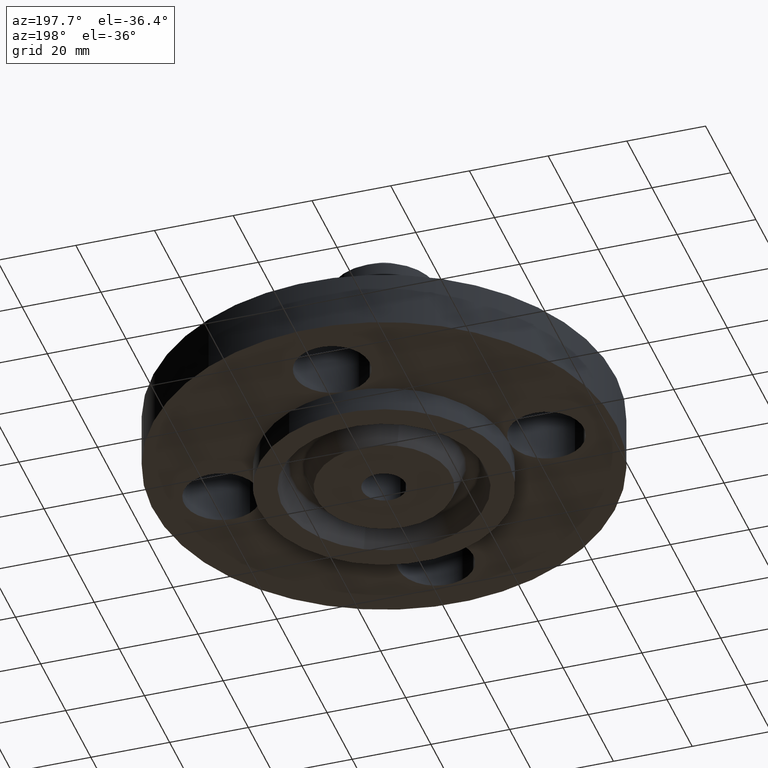
[diagram: clean part render]
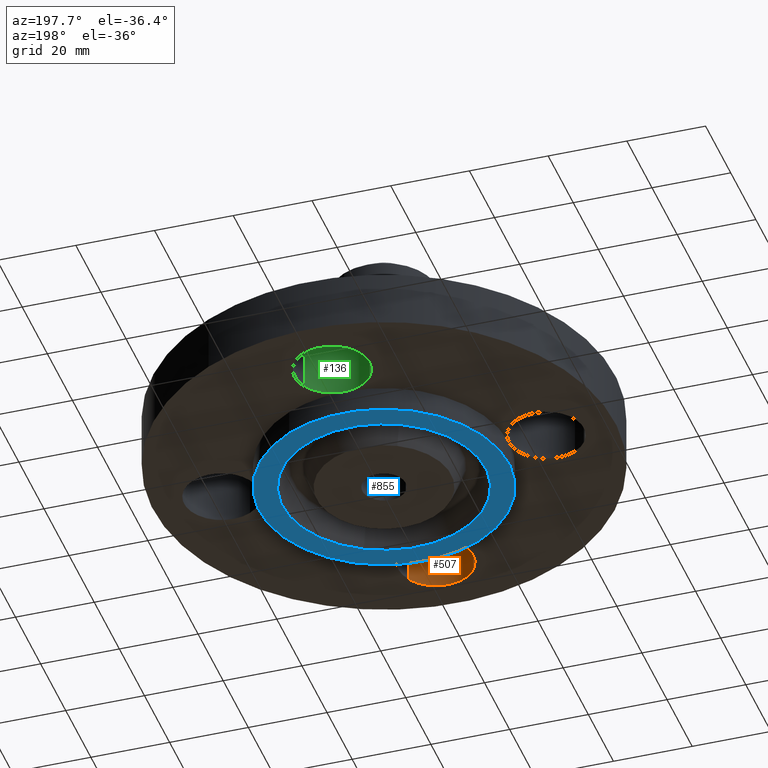
[diagram: same view with three faces highlighted in distinct colors, each labeled with its STEP entity id]
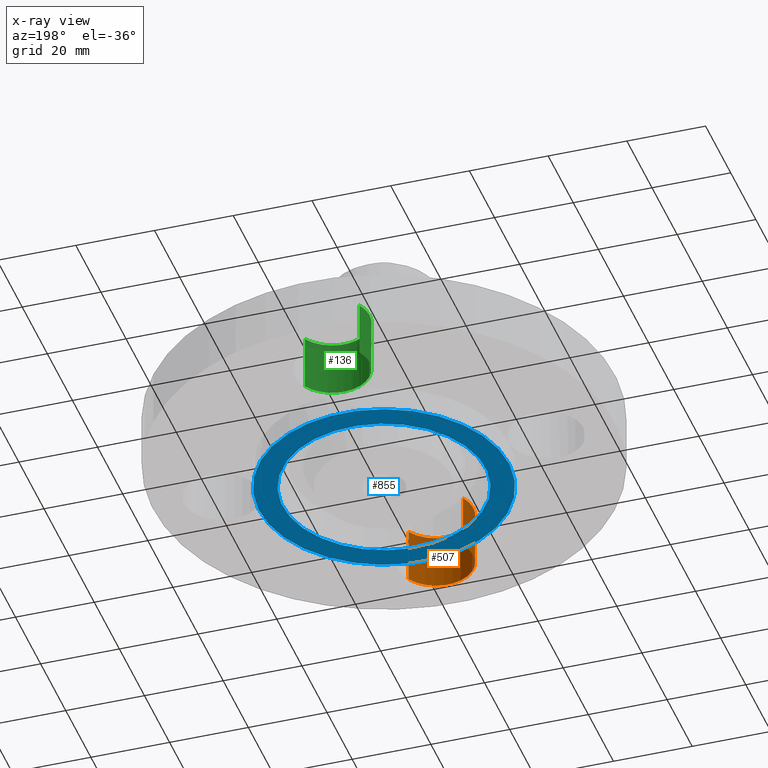
[diagram: x-ray of the same camera — body ghosted, the three highlighted faces saturated]
A machine part, auxiliary view with three faces highlighted in distinct colors.
The next image is the same camera in x-ray (body ghosted, the three faces saturated) — at least one of them is partly hidden behind the body in this view.
Their STEP definitions:

[orange] entity #507 — the highlighted cylindrical surface (partial cylindrical patch) has radius 9.525 mm, axis along (0, 0, -1).
#178=AXIS2_PLACEMENT_3D('Circle Axis2P3D',#176,#177,$) ;
#367=AXIS2_PLACEMENT_3D('Circle Axis2P3D',#365,#366,$) ;
#499=AXIS2_PLACEMENT_3D('Cylinder Axis2P3D',#496,#497,#498) ;
#171=CARTESIAN_POINT('Vertex',(-0.329093460698,-1.44521542303,0.)) ;
#176=CARTESIAN_POINT('Axis2P3D Location',(1.74838271595E-017,-1.625,0.)) ;
#180=CARTESIAN_POINT('Vertex',(0.329093460698,-1.80478457698,0.)) ;
#360=CARTESIAN_POINT('Vertex',(-0.329093460698,-1.44521542305,0.560000000002)) ;
#362=CARTESIAN_POINT('Vertex',(0.32909346071,-1.80478457699,0.559999999987)) ;
#365=CARTESIAN_POINT('Axis2P3D Location',(1.74838271595E-017,-1.62500000003,0.560000000002)) ;
#471=CARTESIAN_POINT('Line Origine',(-0.32909346071,-1.44521542303,0.279999999998)) ;
#476=CARTESIAN_POINT('Line Origine',(0.32909346071,-1.80478457699,0.279999999998)) ;
#496=CARTESIAN_POINT('Axis2P3D Location',(1.99005104862E-016,-1.62500000001,0.556062992128)) ;
#177=DIRECTION('Axis2P3D Direction',(0.,0.,-0.0393700787402)) ;
#366=DIRECTION('Axis2P3D Direction',(0.,0.,-0.0393700787402)) ;
#472=DIRECTION('Vector Direction',(0.,0.,-0.0393700787402)) ;
#477=DIRECTION('Vector Direction',(0.,0.,-0.0393700787402)) ;
#497=DIRECTION('Axis2P3D Direction',(0.,0.,-0.0393700787402)) ;
#498=DIRECTION('Axis2P3D XDirection',(0.0345504945626,-0.0188750212049,0.)) ;
#473=VECTOR('Line Direction',#472,0.0393700787402) ;
#478=VECTOR('Line Direction',#477,0.0393700787402) ;
#502=ORIENTED_EDGE('',*,*,#480,.F.) ;
#503=ORIENTED_EDGE('',*,*,#182,.T.) ;
#504=ORIENTED_EDGE('',*,*,#475,.T.) ;
#505=ORIENTED_EDGE('',*,*,#369,.F.) ;
#507=ADVANCED_FACE('PartBody',(#506),#500,.F.) ;
#179=CIRCLE('generated circle',#178,0.374999999988) ;
#368=CIRCLE('generated circle',#367,0.374999999988) ;
#500=CYLINDRICAL_SURFACE('generated cylinder',#499,0.375000000001) ;
#182=EDGE_CURVE('',#181,#172,#179,.T.) ;
#369=EDGE_CURVE('',#363,#361,#368,.T.) ;
#475=EDGE_CURVE('',#172,#361,#474,.F.) ;
#480=EDGE_CURVE('',#181,#363,#479,.F.) ;
#501=EDGE_LOOP('',(#502,#503,#504,#505)) ;
#506=FACE_OUTER_BOUND('',#501,.T.) ;
#474=LINE('Line',#471,#473) ;
#479=LINE('Line',#476,#478) ;
#172=VERTEX_POINT('',#171) ;
#181=VERTEX_POINT('',#180) ;
#361=VERTEX_POINT('',#360) ;
#363=VERTEX_POINT('',#362) ;

[blue] entity #855 — the highlighted planar face has unit normal (0, 0, -1).
#522=AXIS2_PLACEMENT_3D('Circle Axis2P3D',#520,#521,$) ;
#831=AXIS2_PLACEMENT_3D('Plane Axis2P3D',#828,#829,#830) ;
#839=AXIS2_PLACEMENT_3D('Circle Axis2P3D',#837,#838,$) ;
#848=AXIS2_PLACEMENT_3D('Circle Axis2P3D',#846,#847,$) ;
#520=CARTESIAN_POINT('Axis2P3D Location',(0.,0.,-0.249999999992)) ;
#524=CARTESIAN_POINT('Vertex',(0.59928192326,1.09697820237,-0.249999999992)) ;
#526=CARTESIAN_POINT('Vertex',(-0.599281923244,-1.09697820239,-0.250000000001)) ;
#610=CARTESIAN_POINT('Control Point',(-0.59928192326,-1.09697820237,-0.250000000001)) ;
#611=CARTESIAN_POINT('Control Point',(-0.771594856346,-1.00284321799,-0.250000000001)) ;
#612=CARTESIAN_POINT('Control Point',(-0.925424428472,-0.874874668323,-0.25)) ;
#613=CARTESIAN_POINT('Control Point',(-1.05188306882,-0.717884438897,-0.25)) ;
#614=CARTESIAN_POINT('Control Point',(-1.23643069082,-0.362778647508,-0.249999999999)) ;
#615=CARTESIAN_POINT('Control Point',(-1.27300369951,0.035744078188,-0.249999999998)) ;
#616=CARTESIAN_POINT('Control Point',(-1.25141460583,0.236172696128,-0.249999999997)) ;
#617=CARTESIAN_POINT('Control Point',(-1.13081176767,0.61776528422,-0.249999999996)) ;
#618=CARTESIAN_POINT('Control Point',(-0.874874668324,0.925424428471,-0.249999999996)) ;
#619=CARTESIAN_POINT('Control Point',(-0.717884438897,1.05188306882,-0.249999999995)) ;
#620=CARTESIAN_POINT('Control Point',(-0.362778647509,1.23643069082,-0.249999999994)) ;
#621=CARTESIAN_POINT('Control Point',(0.0357440781873,1.27300369951,-0.249999999993)) ;
#622=CARTESIAN_POINT('Control Point',(0.236172696127,1.25141460583,-0.249999999993)) ;
#623=CARTESIAN_POINT('Control Point',(0.426968990173,1.19111318675,-0.249999999992)) ;
#624=CARTESIAN_POINT('Control Point',(0.599281923259,1.09697820237,-0.249999999992)) ;
#828=CARTESIAN_POINT('Axis2P3D Location',(0.,0.217000000001,-0.250000000001)) ;
#837=CARTESIAN_POINT('Axis2P3D Location',(0.,-1.64824234751E-011,-0.250000000001)) ;
#841=CARTESIAN_POINT('Vertex',(0.487096347208,-0.891623882901,-0.250000000001)) ;
#843=CARTESIAN_POINT('Vertex',(-0.487096347208,0.891623882868,-0.250000000001)) ;
#846=CARTESIAN_POINT('Axis2P3D Location',(0.,-1.64824234751E-011,-0.250000000001)) ;
#521=DIRECTION('Axis2P3D Direction',(0.,0.,-0.0393700787402)) ;
#829=DIRECTION('Axis2P3D Direction',(0.,0.,-0.0393700787402)) ;
#830=DIRECTION('Axis2P3D XDirection',(0.0393700787402,0.,0.)) ;
#838=DIRECTION('Axis2P3D Direction',(0.,0.,-0.0393700787402)) ;
#847=DIRECTION('Axis2P3D Direction',(0.,0.,-0.0393700787402)) ;
#834=ORIENTED_EDGE('',*,*,#625,.T.) ;
#835=ORIENTED_EDGE('',*,*,#528,.T.) ;
#852=ORIENTED_EDGE('',*,*,#845,.F.) ;
#853=ORIENTED_EDGE('',*,*,#850,.F.) ;
#854=FACE_BOUND('',#851,.T.) ;
#855=ADVANCED_FACE('PartBody',(#836,#854),#832,.T.) ;
#609=B_SPLINE_CURVE_WITH_KNOTS('',5,(#610,#611,#612,#613,#614,#615,#616,#617,#618,#619,#620,#621,#622,#623,#624),.UNSPECIFIED.,.F.,.U.,(6,3,3,3,6),(-49.8727833761,-24.9363916881,3.5527136788E-015,24.9363916881,49.8727833761),.UNSPECIFIED.) ;
#523=CIRCLE('generated circle',#522,1.25000000001) ;
#840=CIRCLE('generated circle',#839,1.016) ;
#849=CIRCLE('generated circle',#848,1.016) ;
#528=EDGE_CURVE('',#525,#527,#523,.T.) ;
#625=EDGE_CURVE('',#527,#525,#609,.T.) ;
#845=EDGE_CURVE('',#842,#844,#840,.T.) ;
#850=EDGE_CURVE('',#844,#842,#849,.T.) ;
#833=EDGE_LOOP('',(#834,#835)) ;
#851=EDGE_LOOP('',(#852,#853)) ;
#836=FACE_OUTER_BOUND('',#833,.T.) ;
#832=PLANE('',#831) ;
#525=VERTEX_POINT('',#524) ;
#527=VERTEX_POINT('',#526) ;
#842=VERTEX_POINT('',#841) ;
#844=VERTEX_POINT('',#843) ;

[green] entity #136 — the highlighted cylindrical surface (partial cylindrical patch) has radius 9.525 mm, axis along (0, -0, -1).
#110=AXIS2_PLACEMENT_3D('Cylinder Axis2P3D',#107,#108,#109) ;
#114=AXIS2_PLACEMENT_3D('Circle Axis2P3D',#112,#113,$) ;
#121=AXIS2_PLACEMENT_3D('Circle Axis2P3D',#119,#120,$) ;
#126=AXIS2_PLACEMENT_3D('Circle Axis2P3D',#124,#125,$) ;
#40=CARTESIAN_POINT('Line Origine',(-0.32909346071,1.80478457699,0.280000000001)) ;
#44=CARTESIAN_POINT('Vertex',(-0.329093460698,1.804784577,0.)) ;
#46=CARTESIAN_POINT('Vertex',(-0.32909346071,1.80478457699,0.559999999987)) ;
#65=CARTESIAN_POINT('Vertex',(0.32909346071,1.44521542303,8.4688861348E-012)) ;
#68=CARTESIAN_POINT('Line Origine',(0.32909346071,1.44521542303,0.280000000001)) ;
#72=CARTESIAN_POINT('Vertex',(0.329093460698,1.44521542303,0.560000000002)) ;
#107=CARTESIAN_POINT('Axis2P3D Location',(0.,1.62500000001,0.556062992128)) ;
#112=CARTESIAN_POINT('Axis2P3D Location',(0.,1.62500000001,8.4688861348E-012)) ;
#116=CARTESIAN_POINT('Vertex',(3.95134493804E-015,1.25000000001,8.4688861348E-012)) ;
#119=CARTESIAN_POINT('Axis2P3D Location',(0.,1.62500000001,8.4688861348E-012)) ;
#124=CARTESIAN_POINT('Axis2P3D Location',(0.,1.62500000001,0.559999999987)) ;
#41=DIRECTION('Vector Direction',(0.,0.,-0.0393700787402)) ;
#69=DIRECTION('Vector Direction',(0.,0.,-0.0393700787402)) ;
#108=DIRECTION('Axis2P3D Direction',(0.,-0.,-0.0393700787402)) ;
#109=DIRECTION('Axis2P3D XDirection',(0.0345504945626,-0.0188750212049,0.)) ;
#113=DIRECTION('Axis2P3D Direction',(0.,-0.,-0.0393700787402)) ;
#120=DIRECTION('Axis2P3D Direction',(0.,-0.,-0.0393700787402)) ;
#125=DIRECTION('Axis2P3D Direction',(0.,-0.,-0.0393700787402)) ;
#42=VECTOR('Line Direction',#41,0.0393700787402) ;
#70=VECTOR('Line Direction',#69,0.0393700787402) ;
#130=ORIENTED_EDGE('',*,*,#74,.F.) ;
#131=ORIENTED_EDGE('',*,*,#118,.T.) ;
#132=ORIENTED_EDGE('',*,*,#123,.T.) ;
#133=ORIENTED_EDGE('',*,*,#48,.T.) ;
#134=ORIENTED_EDGE('',*,*,#128,.F.) ;
#136=ADVANCED_FACE('PartBody',(#135),#111,.F.) ;
#115=CIRCLE('generated circle',#114,0.375000000001) ;
#122=CIRCLE('generated circle',#121,0.375000000001) ;
#127=CIRCLE('generated circle',#126,0.375000000001) ;
#111=CYLINDRICAL_SURFACE('generated cylinder',#110,0.375000000001) ;
#48=EDGE_CURVE('',#45,#47,#43,.F.) ;
#74=EDGE_CURVE('',#66,#73,#71,.F.) ;
#118=EDGE_CURVE('',#66,#117,#115,.T.) ;
#123=EDGE_CURVE('',#117,#45,#122,.T.) ;
#128=EDGE_CURVE('',#73,#47,#127,.T.) ;
#129=EDGE_LOOP('',(#130,#131,#132,#133,#134)) ;
#135=FACE_OUTER_BOUND('',#129,.T.) ;
#43=LINE('Line',#40,#42) ;
#71=LINE('Line',#68,#70) ;
#45=VERTEX_POINT('',#44) ;
#47=VERTEX_POINT('',#46) ;
#66=VERTEX_POINT('',#65) ;
#73=VERTEX_POINT('',#72) ;
#117=VERTEX_POINT('',#116) ;